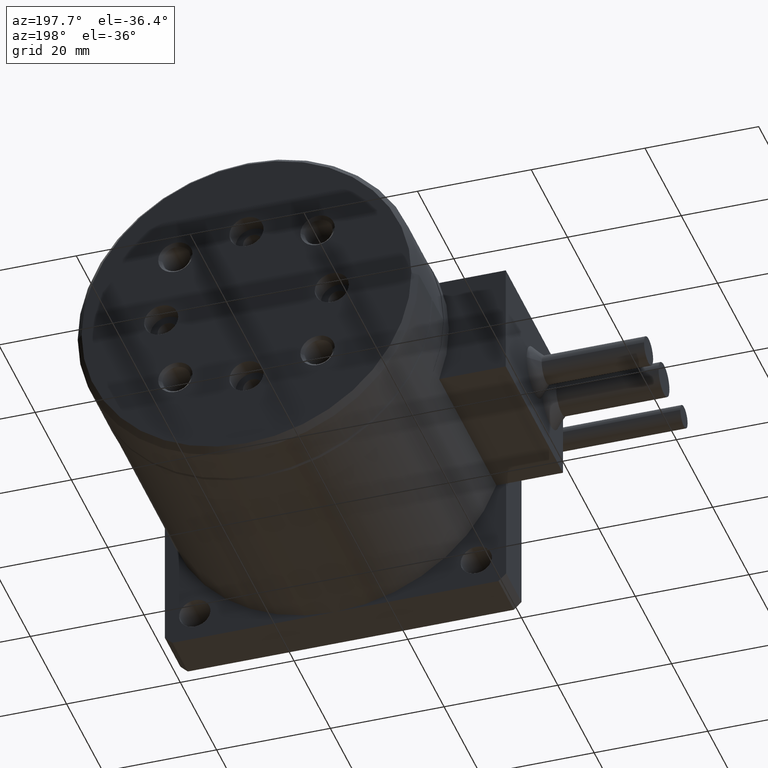
[diagram: clean part render]
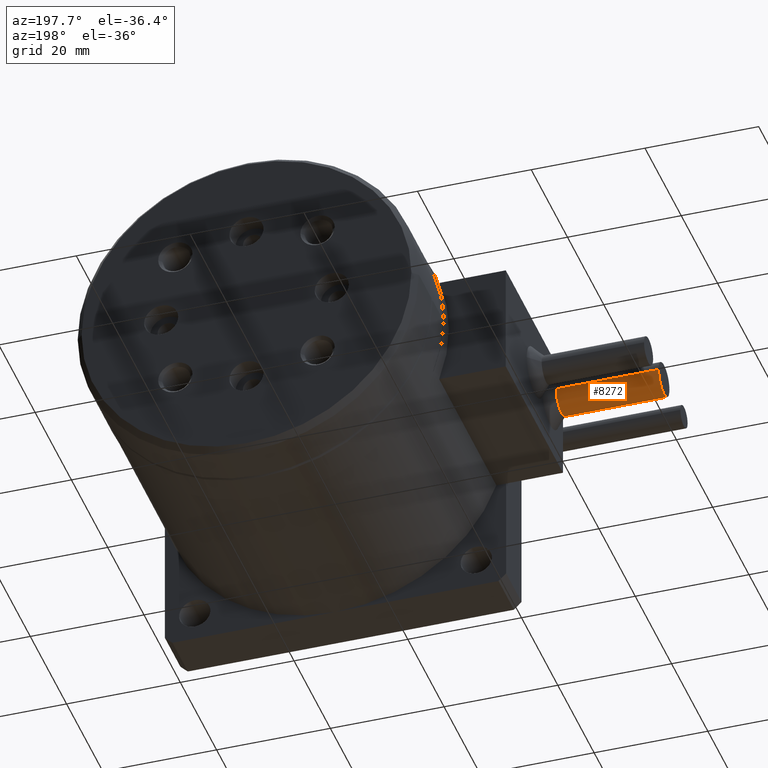
[diagram: same view with one face highlighted and labeled with its STEP entity id]
A machine part, auxiliary view. The second image highlights one B-rep face of the part: STEP entity #8272.
In plain terms, the highlighted cylindrical surface (edge-blend (fillet) strip) has radius 3 mm, axis along (1, 0, -0).
Its self-contained STEP definition (entity closure, byte-faithful):
#33 = ORIENTED_EDGE ( 'NONE', *, *, #7681, .F. ) ;
#123 = ORIENTED_EDGE ( 'NONE', *, *, #1192, .T. ) ;
#266 = LINE ( 'NONE', #7087, #7744 ) ;
#540 = DIRECTION ( 'NONE',  ( 0.0000000000000000000, -1.000000000000000000, 0.0000000000000000000 ) ) ;
#780 = CARTESIAN_POINT ( 'NONE',  ( -29.99999999999999600, 18.50000000000000400, 30.00000000000001400 ) ) ;
#925 = ORIENTED_EDGE ( 'NONE', *, *, #3959, .F. ) ;
#975 = CARTESIAN_POINT ( 'NONE',  ( -11.99999999997316800, 18.49999999992406100, 30.00000000000001400 ) ) ;
#1187 = VECTOR ( 'NONE', #7601, 1000.000000000000000 ) ;
#1192 = EDGE_CURVE ( 'NONE', #5996, #3104, #2240, .T. ) ;
#1199 = DIRECTION ( 'NONE',  ( 1.000000000000000000, 9.957992501029598700E-017, -1.224646799147353000E-016 ) ) ;
#1825 = AXIS2_PLACEMENT_3D ( 'NONE', #2601, #4795, #540 ) ;
#2128 = CARTESIAN_POINT ( 'NONE',  ( -29.99999999999999600, 15.50000000000000200, 30.00000000000001800 ) ) ;
#2240 = CIRCLE ( 'NONE', #6245, 3.000000000000000900 ) ;
#2455 = CYLINDRICAL_SURFACE ( 'NONE', #5982, 3.000000000000000900 ) ;
#2537 = CARTESIAN_POINT ( 'NONE',  ( -29.99999999999999600, 18.50000000000000400, 30.00000000000001800 ) ) ;
#2601 = CARTESIAN_POINT ( 'NONE',  ( -11.99999999997316800, 15.50000000000000400, 30.00000000000001400 ) ) ;
#2664 = EDGE_LOOP ( 'NONE', ( #123, #7972, #33, #925 ) ) ;
#2788 = DIRECTION ( 'NONE',  ( 1.000000000000000000, 9.957992501029598700E-017, -1.224646799147353000E-016 ) ) ;
#3104 = VERTEX_POINT ( 'NONE', #780 ) ;
#3125 = CARTESIAN_POINT ( 'NONE',  ( -11.99999999997316800, 12.50000000007594600, 30.00000000000001400 ) ) ;
#3301 = CARTESIAN_POINT ( 'NONE',  ( -29.99999999999999600, 12.50000000000000000, 30.00000000000001800 ) ) ;
#3652 = VERTEX_POINT ( 'NONE', #3125 ) ;
#3959 = EDGE_CURVE ( 'NONE', #5996, #3652, #266, .T. ) ;
#4414 = EDGE_CURVE ( 'NONE', #3104, #6992, #8805, .T. ) ;
#4616 = CIRCLE ( 'NONE', #1825, 2.999999999924056300 ) ;
#4795 = DIRECTION ( 'NONE',  ( 1.000000000000000000, 9.957992501029598700E-017, -1.224646799147353000E-016 ) ) ;
#5295 = FACE_OUTER_BOUND ( 'NONE', #2664, .T. ) ;
#5982 = AXIS2_PLACEMENT_3D ( 'NONE', #9271, #1199, #9176 ) ;
#5996 = VERTEX_POINT ( 'NONE', #3301 ) ;
#6245 = AXIS2_PLACEMENT_3D ( 'NONE', #2128, #2788, #8623 ) ;
#6992 = VERTEX_POINT ( 'NONE', #975 ) ;
#7087 = CARTESIAN_POINT ( 'NONE',  ( -29.99999999999999600, 12.50000000000000000, 30.00000000000001800 ) ) ;
#7601 = DIRECTION ( 'NONE',  ( 1.000000000000000000, 9.957992501029598700E-017, -1.224646799147353000E-016 ) ) ;
#7681 = EDGE_CURVE ( 'NONE', #3652, #6992, #4616, .T. ) ;
#7744 = VECTOR ( 'NONE', #9200, 1000.000000000000000 ) ;
#7972 = ORIENTED_EDGE ( 'NONE', *, *, #4414, .T. ) ;
#8272 = ADVANCED_FACE ( 'NONE', ( #5295 ), #2455, .T. ) ;
#8623 = DIRECTION ( 'NONE',  ( 0.0000000000000000000, -1.000000000000000000, 0.0000000000000000000 ) ) ;
#8805 = LINE ( 'NONE', #2537, #1187 ) ;
#9176 = DIRECTION ( 'NONE',  ( 0.0000000000000000000, -1.000000000000000000, 0.0000000000000000000 ) ) ;
#9200 = DIRECTION ( 'NONE',  ( 1.000000000000000000, 9.957992501029598700E-017, -1.224646799147353000E-016 ) ) ;
#9271 = CARTESIAN_POINT ( 'NONE',  ( -29.99999999999999600, 15.50000000000000200, 30.00000000000001800 ) ) ;